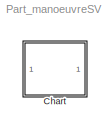
MODEL Part_manoeuvreSV
KIND model
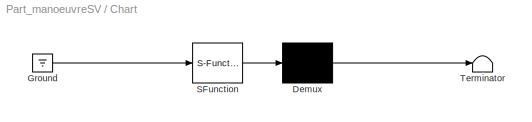
BLOCK [SubSystem] Chart
  FunctionWithSeparateData = off
  MaskDescription = Stateflow diagram
  MaskDisplay = plot(sf('Private','sfblk','xIcon'),sf('Private','sfblk','yIcon'));text(0.5,0,sf('Private', 'sfblk', 'tIcon'),'HorizontalAl','Center','VerticalAl','Bottom');
  MaskHideContents = off
  MaskIconFrame = off
  MaskIconOpaque = on
  MaskIconRotate = none
  MaskIconUnits = autoscale
  MaskPortRotate = default
  MaskSelfModifiable = on
  MaskType = Stateflow
  MinAlgLoopOccurrences = off
  Opaque = off
  PermitHierarchicalResolution = ExplicitOnly
  Ports = []
  PropExecContextOutsideSubsystem = off
  RTWSystemCode = Auto
  RequestExecContextInheritance = off
  SID = 3
  TreatAsAtomicUnit = on
BLOCK [Demux] Chart/ Demux 
  Outputs = 1
  Ports = [1, 1]
  SID = 14
BLOCK [Ground] Chart/ Ground 
  SID = 15
BLOCK [S-Function] Chart/ SFunction 
  EnableBusSupport = on
  FunctionName = sf_sfun
  PortCounts = [1 1]
  Ports = [1, 1]
  SID = 13
  Tag = Stateflow S-Function Part_manoeuvreSV 1
BLOCK [Terminator] Chart/ Terminator 
  SID = 16
LINE Chart/ Demux :1 -> Chart/ Terminator :1
LINE Chart/ Ground :1 -> Chart/ SFunction :1
LINE Chart/ SFunction :1 -> Chart/ Demux :1
CHART Chart states=13 transitions=11
  STATE_LABEL 'SVG'
  STATE_LABEL 'HORS_VOIE'
  STATE_LABEL 'IMMINENTE'
  STATE_LABEL 'SORTIE_VOIE'
  STATE_LABEL 'Recentration'
  STATE_LABEL 'Excentration'
  STATE_LABEL 'MANOEUVRE_SV'
  STATE_LABEL 'SVD'
  STATE_LABEL 'HORS_VOIE'
  STATE_LABEL 'Recentration'
  STATE_LABEL 'Excentration'
  STATE_LABEL 'IMMINENTE'
  STATE_LABEL 'DANS_VOIE'
